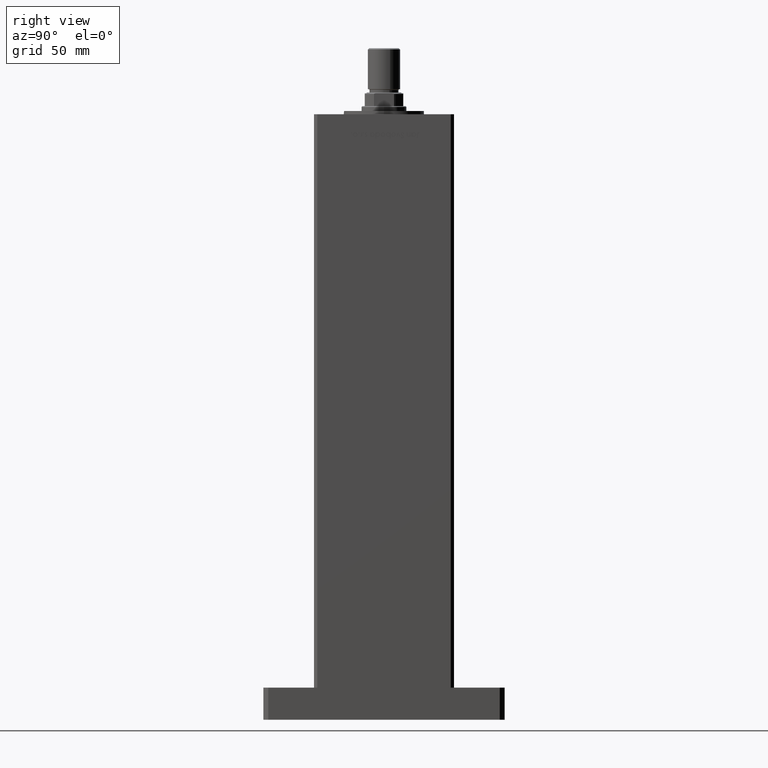
[diagram: clean part render]
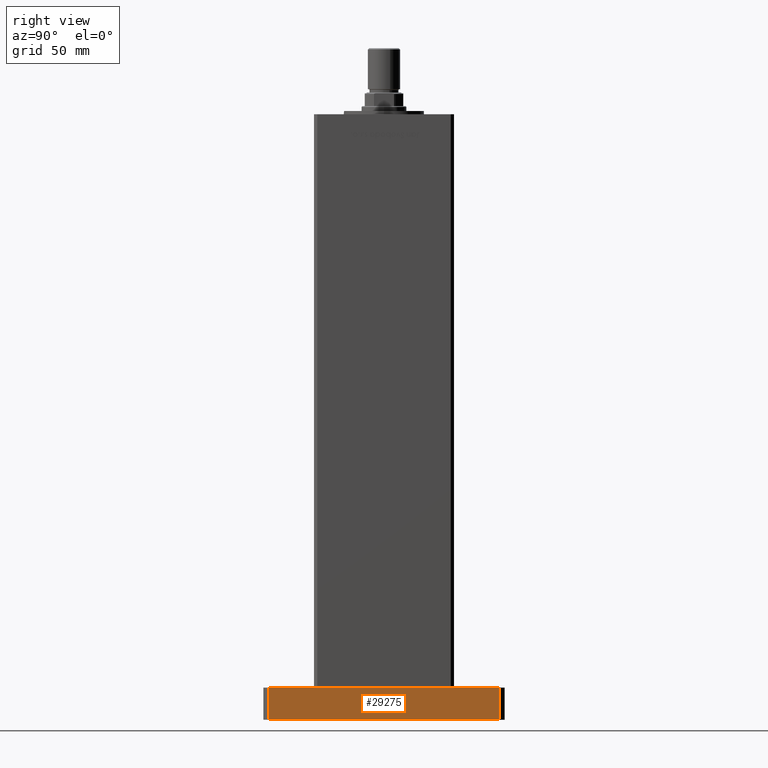
[diagram: same view with one face highlighted and labeled with its STEP entity id]
A machine part, right view. The second image highlights one B-rep face of the part: STEP entity #29275.
In plain terms, the highlighted planar face has unit normal (-1, 0, 0).
Its self-contained STEP definition (entity closure, byte-faithful):
#52 = CARTESIAN_POINT ( 'NONE',  ( 50.00000000000000000, -71.99999999999988631, 20.00000000000000000 ) ) ;
#662 = CARTESIAN_POINT ( 'NONE',  ( 50.00000000000000000, 72.00000000000001421, 20.00000000000000000 ) ) ;
#2338 = DIRECTION ( 'NONE',  ( 0.000000000000000000, 0.000000000000000000, 1.000000000000000000 ) ) ;
#2395 = VERTEX_POINT ( 'NONE', #19744 ) ;
#2420 = CARTESIAN_POINT ( 'NONE',  ( 50.00000000000000000, -71.99999999999988631, 0.000000000000000000 ) ) ;
#3081 = VECTOR ( 'NONE', #49248, 1000.000000000000000 ) ;
#3153 = FACE_OUTER_BOUND ( 'NONE', #3157, .T. ) ;
#3157 = EDGE_LOOP ( 'NONE', ( #23026, #9862, #6193, #34494 ) ) ;
#3745 = VERTEX_POINT ( 'NONE', #3775 ) ;
#3775 = CARTESIAN_POINT ( 'NONE',  ( 50.00000000000000000, 72.00000000000001421, 0.000000000000000000 ) ) ;
#6193 = ORIENTED_EDGE ( 'NONE', *, *, #13846, .F. ) ;
#6508 = AXIS2_PLACEMENT_3D ( 'NONE', #23966, #19578, #2338 ) ;
#8507 = DIRECTION ( 'NONE',  ( 0.000000000000000000, 1.000000000000000000, 0.000000000000000000 ) ) ;
#9367 = CARTESIAN_POINT ( 'NONE',  ( 50.00000000000000000, -71.99999999999988631, 20.00000000000000000 ) ) ;
#9862 = ORIENTED_EDGE ( 'NONE', *, *, #49714, .F. ) ;
#13846 = EDGE_CURVE ( 'NONE', #27532, #49163, #46057, .T. ) ;
#19578 = DIRECTION ( 'NONE',  ( -1.000000000000000000, 0.000000000000000000, 0.000000000000000000 ) ) ;
#19744 = CARTESIAN_POINT ( 'NONE',  ( 50.00000000000000000, -71.99999999999988631, 0.000000000000000000 ) ) ;
#23026 = ORIENTED_EDGE ( 'NONE', *, *, #34334, .T. ) ;
#23966 = CARTESIAN_POINT ( 'NONE',  ( 50.00000000000000000, -71.99999999999988631, 20.00000000000000000 ) ) ;
#25765 = CARTESIAN_POINT ( 'NONE',  ( 50.00000000000000000, -71.99999999999988631, 20.00000000000000000 ) ) ;
#26090 = DIRECTION ( 'NONE',  ( -0.000000000000000000, -0.000000000000000000, -1.000000000000000000 ) ) ;
#27532 = VERTEX_POINT ( 'NONE', #52 ) ;
#29275 = ADVANCED_FACE ( 'NONE', ( #3153 ), #39562, .F. ) ;
#34334 = EDGE_CURVE ( 'NONE', #2395, #3745, #36903, .T. ) ;
#34494 = ORIENTED_EDGE ( 'NONE', *, *, #36175, .T. ) ;
#34563 = LINE ( 'NONE', #9367, #52094 ) ;
#36175 = EDGE_CURVE ( 'NONE', #27532, #2395, #34563, .T. ) ;
#36903 = LINE ( 'NONE', #2420, #3081 ) ;
#39562 = PLANE ( 'NONE',  #6508 ) ;
#41913 = VECTOR ( 'NONE', #42267, 1000.000000000000000 ) ;
#42267 = DIRECTION ( 'NONE',  ( -0.000000000000000000, -0.000000000000000000, -1.000000000000000000 ) ) ;
#45713 = CARTESIAN_POINT ( 'NONE',  ( 50.00000000000000000, 72.00000000000001421, 20.00000000000000000 ) ) ;
#46057 = LINE ( 'NONE', #25765, #51552 ) ;
#49163 = VERTEX_POINT ( 'NONE', #45713 ) ;
#49248 = DIRECTION ( 'NONE',  ( 0.000000000000000000, 1.000000000000000000, 0.000000000000000000 ) ) ;
#49714 = EDGE_CURVE ( 'NONE', #49163, #3745, #51568, .T. ) ;
#51552 = VECTOR ( 'NONE', #8507, 1000.000000000000000 ) ;
#51568 = LINE ( 'NONE', #662, #41913 ) ;
#52094 = VECTOR ( 'NONE', #26090, 1000.000000000000000 ) ;